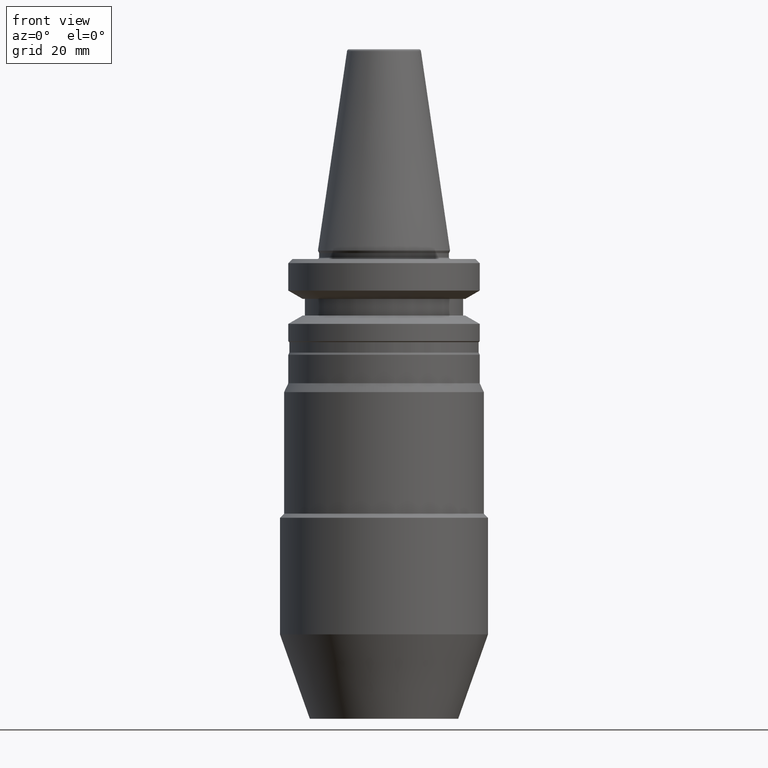
[diagram: clean part render]
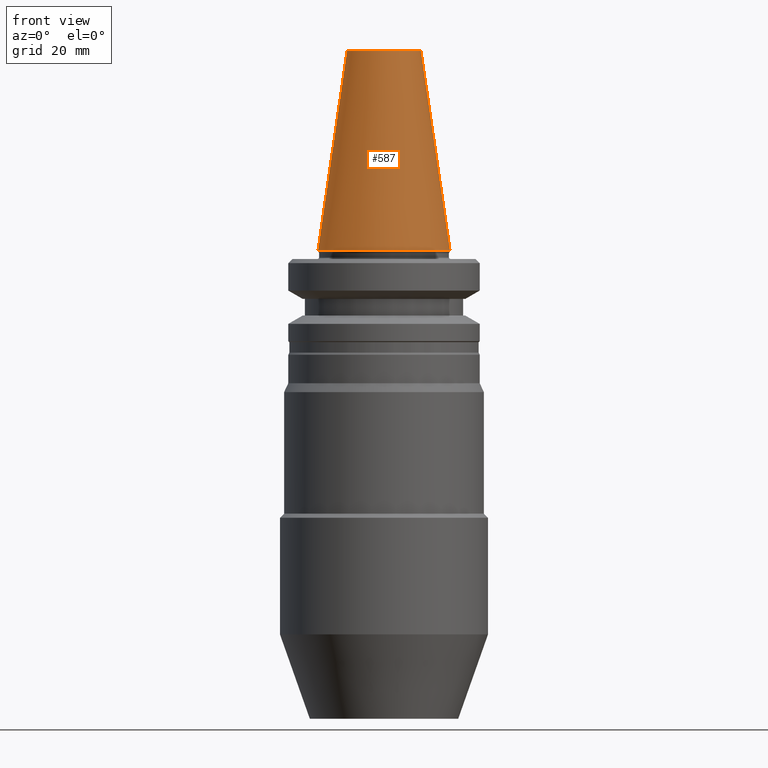
[diagram: same view with one face highlighted and labeled with its STEP entity id]
A machine part, front view. The second image highlights one B-rep face of the part: STEP entity #587.
In plain terms, the highlighted conical surface has half-angle 8.297 deg.
Its self-contained STEP definition (entity closure, byte-faithful):
#48 = CIRCLE ( 'NONE', #205, 8.878994820583352900 ) ;
#63 = EDGE_CURVE ( 'NONE', #1051, #1120, #578, .T. ) ;
#89 = CONICAL_SURFACE ( 'NONE', #995, 15.87499999999997200, 0.1448138461595655500 ) ;
#114 = VERTEX_POINT ( 'NONE', #410 ) ;
#138 = FACE_OUTER_BOUND ( 'NONE', #375, .T. ) ;
#151 = AXIS2_PLACEMENT_3D ( 'NONE', #1037, #1170, #1160 ) ;
#154 = VECTOR ( 'NONE', #1070, 1000.000000000000100 ) ;
#185 = DIRECTION ( 'NONE',  ( 1.000000000000000000, 0.0000000000000000000, 0.0000000000000000000 ) ) ;
#205 = AXIS2_PLACEMENT_3D ( 'NONE', #794, #851, #185 ) ;
#295 = ORIENTED_EDGE ( 'NONE', *, *, #906, .T. ) ;
#375 = EDGE_LOOP ( 'NONE', ( #1168, #686, #1085, #295 ) ) ;
#386 = CARTESIAN_POINT ( 'NONE',  ( 8.878994820583352900, 1.515745026156876300E-015, 47.82215411344148500 ) ) ;
#410 = CARTESIAN_POINT ( 'NONE',  ( -8.878994820583352900, 0.0000000000000000000, 47.82215411344148500 ) ) ;
#436 = CARTESIAN_POINT ( 'NONE',  ( 0.0000000000000000000, 0.0000000000000000000, -0.1500000000000389900 ) ) ;
#507 = VECTOR ( 'NONE', #1189, 1000.000000000000100 ) ;
#528 = CARTESIAN_POINT ( 'NONE',  ( -15.87499999999997200, 0.0000000000000000000, -0.1500000000000389900 ) ) ;
#555 = DIRECTION ( 'NONE',  ( -1.000000000000000000, 0.0000000000000000000, 0.0000000000000000000 ) ) ;
#578 = LINE ( 'NONE', #681, #507 ) ;
#587 = ADVANCED_FACE ( 'NONE', ( #138 ), #89, .T. ) ;
#662 = EDGE_CURVE ( 'NONE', #114, #1051, #48, .T. ) ;
#681 = CARTESIAN_POINT ( 'NONE',  ( 15.87499999999997200, 1.944126793646419700E-015, -0.1500000000000389900 ) ) ;
#686 = ORIENTED_EDGE ( 'NONE', *, *, #662, .F. ) ;
#794 = CARTESIAN_POINT ( 'NONE',  ( 0.0000000000000000000, 0.0000000000000000000, 47.82215411344148500 ) ) ;
#818 = EDGE_CURVE ( 'NONE', #114, #976, #981, .T. ) ;
#846 = DIRECTION ( 'NONE',  ( 0.0000000000000000000, 0.0000000000000000000, -1.000000000000000000 ) ) ;
#851 = DIRECTION ( 'NONE',  ( -0.0000000000000000000, -0.0000000000000000000, 1.000000000000000000 ) ) ;
#906 = EDGE_CURVE ( 'NONE', #976, #1120, #1081, .T. ) ;
#910 = CARTESIAN_POINT ( 'NONE',  ( 15.87499999999997200, 0.0000000000000000000, -0.1500000000000389900 ) ) ;
#976 = VERTEX_POINT ( 'NONE', #1177 ) ;
#981 = LINE ( 'NONE', #528, #154 ) ;
#995 = AXIS2_PLACEMENT_3D ( 'NONE', #436, #846, #555 ) ;
#1037 = CARTESIAN_POINT ( 'NONE',  ( 0.0000000000000000000, 0.0000000000000000000, -0.1500000000000389900 ) ) ;
#1051 = VERTEX_POINT ( 'NONE', #386 ) ;
#1070 = DIRECTION ( 'NONE',  ( -0.1443082268835132200, 0.0000000000000000000, -0.9895327865481448000 ) ) ;
#1081 = CIRCLE ( 'NONE', #151, 15.87499999999997200 ) ;
#1085 = ORIENTED_EDGE ( 'NONE', *, *, #818, .T. ) ;
#1120 = VERTEX_POINT ( 'NONE', #910 ) ;
#1160 = DIRECTION ( 'NONE',  ( 1.000000000000000000, 0.0000000000000000000, 0.0000000000000000000 ) ) ;
#1168 = ORIENTED_EDGE ( 'NONE', *, *, #63, .F. ) ;
#1170 = DIRECTION ( 'NONE',  ( -0.0000000000000000000, -0.0000000000000000000, 1.000000000000000000 ) ) ;
#1177 = CARTESIAN_POINT ( 'NONE',  ( -15.87499999999997200, 1.944126793646420100E-015, -0.1500000000000389900 ) ) ;
#1189 = DIRECTION ( 'NONE',  ( 0.1443082268835132200, 1.767266081435245000E-017, -0.9895327865481448000 ) ) ;